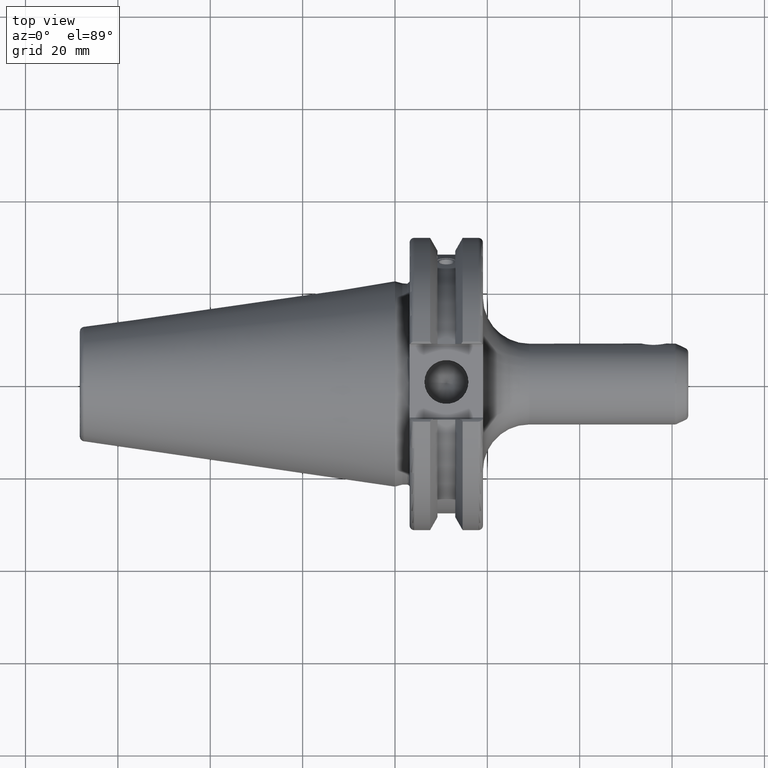
[diagram: clean part render]
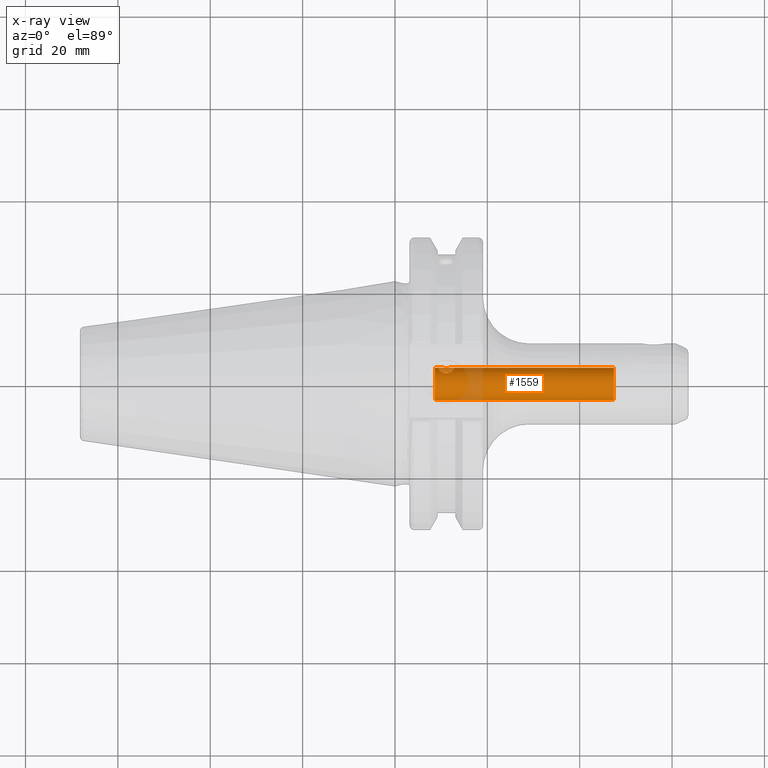
[diagram: x-ray — body ghosted, one internal face saturated and labeled with its STEP entity id]
A machine part, top view, then the same camera in x-ray: the body is ghosted and one INTERNAL B-rep face — a face not visible from any outside direction — is saturated and labeled: STEP entity #1559.
In plain terms, the highlighted cylindrical surface (bore or boss wall) has radius 3.5 mm, axis along (-1, 0, 0).
Its self-contained STEP definition (entity closure, byte-faithful):
#72=B_SPLINE_CURVE_WITH_KNOTS('',3,(#2501,#2502,#2503,#2504,#2505,#2506,
#2507,#2508,#2509,#2510,#2511,#2512,#2513,#2514,#2515,#2516,#2517,#2518,
#2519,#2520,#2521,#2522,#2523,#2524,#2525,#2526),.UNSPECIFIED.,.F.,.F.,
(4,2,2,2,2,2,2,2,2,2,2,2,4),(0.,0.0621697065664114,0.124339413132823,0.186389230344466,
0.248439047556109,0.310488864767752,0.372538681979395,0.434708388545806,
0.496878095112218,0.559047801678629,0.62121750824504,0.683267325456683,
0.745317142668326),.UNSPECIFIED.);
#73=B_SPLINE_CURVE_WITH_KNOTS('',3,(#2527,#2528,#2529,#2530,#2531,#2532,
#2533,#2534,#2535,#2536),.UNSPECIFIED.,.F.,.F.,(4,2,2,2,4),(0.745317142668326,
0.807366959879969,0.869416777091612,0.931586483658024,0.993756190224435),
 .UNSPECIFIED.);
#74=B_SPLINE_CURVE_WITH_KNOTS('',3,(#2539,#2540,#2541,#2542,#2543,#2544,
#2545,#2546,#2547,#2548,#2549,#2550,#2551,#2552,#2553,#2554,#2555,#2556,
#2557,#2558,#2559,#2560,#2561,#2562,#2563,#2564),.UNSPECIFIED.,.F.,.F.,
(4,2,2,2,2,2,2,2,2,2,2,2,4),(0.,0.0621697065664116,0.124339413132823,0.186389230344466,
0.248439047556109,0.310488864767752,0.372538681979395,0.434708388545807,
0.496878095112218,0.559047801678629,0.621217508245041,0.683267325456684,
0.745317142668327),.UNSPECIFIED.);
#75=B_SPLINE_CURVE_WITH_KNOTS('',3,(#2565,#2566,#2567,#2568,#2569,#2570,
#2571,#2572,#2573,#2574),.UNSPECIFIED.,.F.,.F.,(4,2,2,2,4),(0.745317142668327,
0.80736695987997,0.869416777091613,0.931586483658024,0.993756190224435),
 .UNSPECIFIED.);
#118=LINE('',#2498,#212);
#212=VECTOR('',#1943,3.5);
#293=CYLINDRICAL_SURFACE('',#1696,3.5);
#322=FACE_BOUND('',#477,.T.);
#323=FACE_BOUND('',#478,.T.);
#383=FACE_OUTER_BOUND('',#476,.T.);
#476=EDGE_LOOP('',(#1130,#1131,#1132,#1133));
#477=EDGE_LOOP('',(#1134,#1135));
#478=EDGE_LOOP('',(#1136,#1137));
#587=CIRCLE('',#1695,3.5);
#588=CIRCLE('',#1697,3.5);
#677=VERTEX_POINT('',#2492);
#678=VERTEX_POINT('',#2496);
#679=VERTEX_POINT('',#2499);
#680=VERTEX_POINT('',#2500);
#681=VERTEX_POINT('',#2537);
#682=VERTEX_POINT('',#2538);
#849=EDGE_CURVE('',#677,#677,#587,.T.);
#851=EDGE_CURVE('',#678,#678,#588,.T.);
#852=EDGE_CURVE('',#678,#677,#118,.T.);
#853=EDGE_CURVE('',#679,#680,#72,.T.);
#854=EDGE_CURVE('',#680,#679,#73,.T.);
#855=EDGE_CURVE('',#681,#682,#74,.T.);
#856=EDGE_CURVE('',#682,#681,#75,.T.);
#1130=ORIENTED_EDGE('',*,*,#851,.F.);
#1131=ORIENTED_EDGE('',*,*,#852,.T.);
#1132=ORIENTED_EDGE('',*,*,#849,.F.);
#1133=ORIENTED_EDGE('',*,*,#852,.F.);
#1134=ORIENTED_EDGE('',*,*,#853,.F.);
#1135=ORIENTED_EDGE('',*,*,#854,.F.);
#1136=ORIENTED_EDGE('',*,*,#855,.F.);
#1137=ORIENTED_EDGE('',*,*,#856,.F.);
#1559=ADVANCED_FACE('',(#383,#322,#323),#293,.F.);
#1695=AXIS2_PLACEMENT_3D('',#2493,#1936,#1937);
#1696=AXIS2_PLACEMENT_3D('',#2495,#1939,#1940);
#1697=AXIS2_PLACEMENT_3D('',#2497,#1941,#1942);
#1936=DIRECTION('center_axis',(-1.,0.,0.));
#1937=DIRECTION('ref_axis',(0.,0.,1.));
#1939=DIRECTION('center_axis',(-1.,0.,0.));
#1940=DIRECTION('ref_axis',(0.,0.,1.));
#1941=DIRECTION('center_axis',(1.,0.,0.));
#1942=DIRECTION('ref_axis',(0.,0.,1.));
#1943=DIRECTION('',(1.,0.,0.));
#2492=CARTESIAN_POINT('',(47.4,-4.28626379701574E-16,-3.5));
#2493=CARTESIAN_POINT('Origin',(47.4,0.,0.));
#2495=CARTESIAN_POINT('Origin',(-10.425,0.,0.));
#2496=CARTESIAN_POINT('',(8.66848787049308,4.28626379701574E-16,-3.5));
#2497=CARTESIAN_POINT('Origin',(8.66848787049308,0.,0.));
#2498=CARTESIAN_POINT('',(-10.425,-4.28626379701574E-16,-3.5));
#2499=CARTESIAN_POINT('',(11.1341,-3.46933434604855,0.462297734504382));
#2500=CARTESIAN_POINT('',(9.5131,-3.28892417275068,-1.19707050163984));
#2501=CARTESIAN_POINT('Ctrl Pts',(11.1341,-3.46933434604855,0.462297734504382));
#2502=CARTESIAN_POINT('Ctrl Pts',(11.3413323552214,-3.46933434604855,0.462297734504382));
#2503=CARTESIAN_POINT('Ctrl Pts',(11.5597159597374,-3.47653644685945,0.414912015299031));
#2504=CARTESIAN_POINT('Ctrl Pts',(11.9578735169377,-3.49352811486166,0.231771837489336));
#2505=CARTESIAN_POINT('Ctrl Pts',(12.1379968657466,-3.50190637037419,0.0966494767999428));
#2506=CARTESIAN_POINT('Ctrl Pts',(12.4223688597909,-3.49726607391238,-0.204283948586391));
#2507=CARTESIAN_POINT('Ctrl Pts',(12.5466810119849,-3.48395768925878,-0.391226826475883));
#2508=CARTESIAN_POINT('Ctrl Pts',(12.713126511743,-3.41557641314034,-0.790479215580093));
#2509=CARTESIAN_POINT('Ctrl Pts',(12.7551,-3.35966513067087,-1.00271131712352));
#2510=CARTESIAN_POINT('Ctrl Pts',(12.7551,-3.21818321483049,-1.39142968615616));
#2511=CARTESIAN_POINT('Ctrl Pts',(12.713126511743,-3.12459357682403,-1.58994798780802));
#2512=CARTESIAN_POINT('Ctrl Pts',(12.5466810119849,-2.92034218455401,-1.93974769890677));
#2513=CARTESIAN_POINT('Ctrl Pts',(12.4223688597909,-2.81037243303828,-2.09150871645496));
#2514=CARTESIAN_POINT('Ctrl Pts',(12.1379968657466,-2.62049082917841,-2.32501981979184));
#2515=CARTESIAN_POINT('Ctrl Pts',(11.9578735169377,-2.52721773385727,-2.42314411450483));
#2516=CARTESIAN_POINT('Ctrl Pts',(11.5597159597374,-2.39648112387299,-2.55251559636804));
#2517=CARTESIAN_POINT('Ctrl Pts',(11.3413323552214,-2.36050504138673,-2.58418574208353));
#2518=CARTESIAN_POINT('Ctrl Pts',(10.9268676447786,-2.36050504138673,-2.58418574208353));
#2519=CARTESIAN_POINT('Ctrl Pts',(10.7084840402626,-2.39648112387299,-2.55251559636804));
#2520=CARTESIAN_POINT('Ctrl Pts',(10.3103264830623,-2.52721773385727,-2.42314411450483));
#2521=CARTESIAN_POINT('Ctrl Pts',(10.1302031342534,-2.62049082917841,-2.32501981979184));
#2522=CARTESIAN_POINT('Ctrl Pts',(9.84583114020909,-2.81037243303828,-2.09150871645496));
#2523=CARTESIAN_POINT('Ctrl Pts',(9.72151898801515,-2.92034218455401,-1.93974769890677));
#2524=CARTESIAN_POINT('Ctrl Pts',(9.55507348825705,-3.12459357682403,-1.58994798780802));
#2525=CARTESIAN_POINT('Ctrl Pts',(9.5131,-3.21818321483049,-1.39142968615616));
#2526=CARTESIAN_POINT('Ctrl Pts',(9.5131,-3.28892417275068,-1.19707050163984));
#2527=CARTESIAN_POINT('Ctrl Pts',(9.5131,-3.28892417275068,-1.19707050163984));
#2528=CARTESIAN_POINT('Ctrl Pts',(9.5131,-3.35966513067087,-1.00271131712352));
#2529=CARTESIAN_POINT('Ctrl Pts',(9.55507348825705,-3.41557641314034,-0.790479215580093));
#2530=CARTESIAN_POINT('Ctrl Pts',(9.72151898801515,-3.48395768925878,-0.391226826475882));
#2531=CARTESIAN_POINT('Ctrl Pts',(9.84583114020909,-3.49726607391238,-0.20428394858639));
#2532=CARTESIAN_POINT('Ctrl Pts',(10.1302031342534,-3.50190637037419,0.0966494767999437));
#2533=CARTESIAN_POINT('Ctrl Pts',(10.3103264830623,-3.49352811486166,0.231771837489337));
#2534=CARTESIAN_POINT('Ctrl Pts',(10.7084840402626,-3.47653644685945,0.414912015299031));
#2535=CARTESIAN_POINT('Ctrl Pts',(10.9268676447786,-3.46933434604855,0.462297734504382));
#2536=CARTESIAN_POINT('Ctrl Pts',(11.1341,-3.46933434604855,0.462297734504382));
#2537=CARTESIAN_POINT('',(11.1341,3.46933434604855,-0.462297734504381));
#2538=CARTESIAN_POINT('',(9.5131,3.28892417275068,1.19707050163984));
#2539=CARTESIAN_POINT('Ctrl Pts',(11.1341,3.46933434604855,-0.462297734504381));
#2540=CARTESIAN_POINT('Ctrl Pts',(11.3413323552214,3.46933434604855,-0.462297734504382));
#2541=CARTESIAN_POINT('Ctrl Pts',(11.5597159597374,3.47653644685945,-0.414912015299031));
#2542=CARTESIAN_POINT('Ctrl Pts',(11.9578735169377,3.49352811486166,-0.231771837489336));
#2543=CARTESIAN_POINT('Ctrl Pts',(12.1379968657466,3.50190637037419,-0.0966494767999418));
#2544=CARTESIAN_POINT('Ctrl Pts',(12.4223688597909,3.49726607391238,0.204283948586392));
#2545=CARTESIAN_POINT('Ctrl Pts',(12.5466810119849,3.48395768925878,0.391226826475885));
#2546=CARTESIAN_POINT('Ctrl Pts',(12.713126511743,3.41557641314034,0.790479215580095));
#2547=CARTESIAN_POINT('Ctrl Pts',(12.7551,3.35966513067087,1.00271131712352));
#2548=CARTESIAN_POINT('Ctrl Pts',(12.7551,3.21818321483049,1.39142968615616));
#2549=CARTESIAN_POINT('Ctrl Pts',(12.713126511743,3.12459357682402,1.58994798780802));
#2550=CARTESIAN_POINT('Ctrl Pts',(12.5466810119849,2.92034218455401,1.93974769890677));
#2551=CARTESIAN_POINT('Ctrl Pts',(12.4223688597909,2.81037243303828,2.09150871645496));
#2552=CARTESIAN_POINT('Ctrl Pts',(12.1379968657466,2.62049082917841,2.32501981979184));
#2553=CARTESIAN_POINT('Ctrl Pts',(11.9578735169377,2.52721773385727,2.42314411450483));
#2554=CARTESIAN_POINT('Ctrl Pts',(11.5597159597374,2.39648112387299,2.55251559636804));
#2555=CARTESIAN_POINT('Ctrl Pts',(11.3413323552214,2.36050504138673,2.58418574208353));
#2556=CARTESIAN_POINT('Ctrl Pts',(10.9268676447786,2.36050504138673,2.58418574208353));
#2557=CARTESIAN_POINT('Ctrl Pts',(10.7084840402626,2.39648112387299,2.55251559636804));
#2558=CARTESIAN_POINT('Ctrl Pts',(10.3103264830623,2.52721773385727,2.42314411450483));
#2559=CARTESIAN_POINT('Ctrl Pts',(10.1302031342534,2.62049082917841,2.32501981979184));
#2560=CARTESIAN_POINT('Ctrl Pts',(9.84583114020909,2.81037243303828,2.09150871645496));
#2561=CARTESIAN_POINT('Ctrl Pts',(9.72151898801515,2.92034218455401,1.93974769890677));
#2562=CARTESIAN_POINT('Ctrl Pts',(9.55507348825705,3.12459357682403,1.58994798780802));
#2563=CARTESIAN_POINT('Ctrl Pts',(9.5131,3.21818321483049,1.39142968615616));
#2564=CARTESIAN_POINT('Ctrl Pts',(9.5131,3.28892417275068,1.19707050163984));
#2565=CARTESIAN_POINT('Ctrl Pts',(9.5131,3.28892417275068,1.19707050163984));
#2566=CARTESIAN_POINT('Ctrl Pts',(9.5131,3.35966513067087,1.00271131712352));
#2567=CARTESIAN_POINT('Ctrl Pts',(9.55507348825705,3.41557641314034,0.790479215580094));
#2568=CARTESIAN_POINT('Ctrl Pts',(9.72151898801515,3.48395768925878,0.391226826475884));
#2569=CARTESIAN_POINT('Ctrl Pts',(9.84583114020909,3.49726607391238,0.204283948586391));
#2570=CARTESIAN_POINT('Ctrl Pts',(10.1302031342534,3.50190637037419,-0.0966494767999415));
#2571=CARTESIAN_POINT('Ctrl Pts',(10.3103264830623,3.49352811486166,-0.231771837489335));
#2572=CARTESIAN_POINT('Ctrl Pts',(10.7084840402626,3.47653644685945,-0.414912015299028));
#2573=CARTESIAN_POINT('Ctrl Pts',(10.9268676447786,3.46933434604855,-0.462297734504381));
#2574=CARTESIAN_POINT('Ctrl Pts',(11.1341,3.46933434604855,-0.462297734504381));